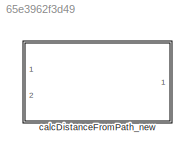
MODEL slx_65e3962f3d49
KIND library
CONFIG AbsTol = auto
CONFIG EnableMultiTasking = off
CONFIG FixedStep = auto
CONFIG MaxStep = auto
CONFIG MinStep = auto
CONFIG RelTol = 1e-3
CONFIG SampleTimeConstraint = Unconstrained
CONFIG SolverName = VariableStepAuto
CONFIG StartTime = 0.0
CONFIG StopTime = 10.0
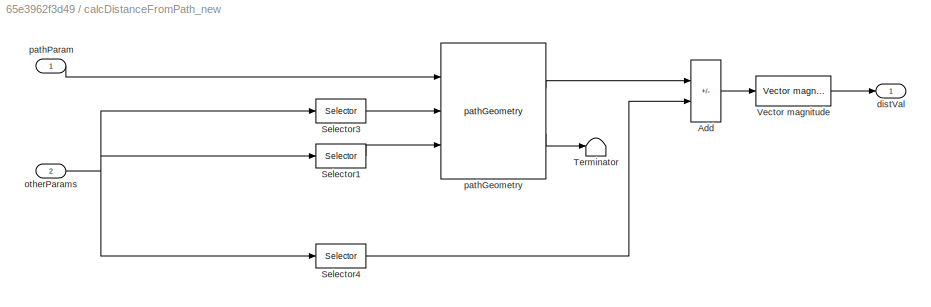
BLOCK [SubSystem] calcDistanceFromPath_new
  Ports = [2, 1]
  RequestExecContextInheritance = off
BLOCK [Sum] calcDistanceFromPath_new/Add
  IconShape = rectangular
  Inputs = +-
  Ports = [2, 1]
BLOCK [Selector] calcDistanceFromPath_new/Selector1
  IndexOptions = Index vector (dialog)
  Indices = 6:8
  InputPortWidth = 11
  OutputSizes = 1
  Ports = [1, 1]
BLOCK [Selector] calcDistanceFromPath_new/Selector3
  IndexOptions = Index vector (dialog)
  Indices = 1:5
  InputPortWidth = 11
  OutputSizes = 1
  Ports = [1, 1]
BLOCK [Selector] calcDistanceFromPath_new/Selector4
  IndexOptions = Index vector (dialog)
  Indices = 9:11
  InputPortWidth = 11
  OutputSizes = 1
  Ports = [1, 1]
BLOCK [Terminator] calcDistanceFromPath_new/Terminator
BLOCK [Reference] calcDistanceFromPath_new/Vector magnitude  REF=calculate_vector_magnitude/Vector magnitude  (lib defined in slx_4d1e83c0815f)
  Ports = [1, 1]
  SourceBlock = calculate_vector_magnitude/Vector magnitude
BLOCK [Outport] calcDistanceFromPath_new/distVal
BLOCK [Inport] calcDistanceFromPath_new/otherParams
  Port = 2
BLOCK [Reference] calcDistanceFromPath_new/pathGeometry  REF=pathGeometry_ul/pathGeometry
  Ports = [3, 2]
  SourceBlock = pathGeometry_ul/pathGeometry
  SourceType = SubSystem
BLOCK [Inport] calcDistanceFromPath_new/pathParam
LINE calcDistanceFromPath_new/Add:1 -> calcDistanceFromPath_new/Vector magnitude:1
LINE calcDistanceFromPath_new/Selector1:1 -> calcDistanceFromPath_new/pathGeometry:3
LINE calcDistanceFromPath_new/Selector3:1 -> calcDistanceFromPath_new/pathGeometry:2
LINE calcDistanceFromPath_new/Selector4:1 -> calcDistanceFromPath_new/Add:2
LINE calcDistanceFromPath_new/Vector magnitude:1 -> calcDistanceFromPath_new/distVal:1
NET calcDistanceFromPath_new/otherParams:1 -> calcDistanceFromPath_new/Selector1:1, calcDistanceFromPath_new/Selector3:1, calcDistanceFromPath_new/Selector4:1
LINE calcDistanceFromPath_new/pathGeometry:1 -> calcDistanceFromPath_new/Add:1
LINE calcDistanceFromPath_new/pathGeometry:2 -> calcDistanceFromPath_new/Terminator:1
LINE calcDistanceFromPath_new/pathParam:1 -> calcDistanceFromPath_new/pathGeometry:1
note: NET lines group one-source signal fan-out (src -> all destinations, sorted); 1:1 wires keep LINE
